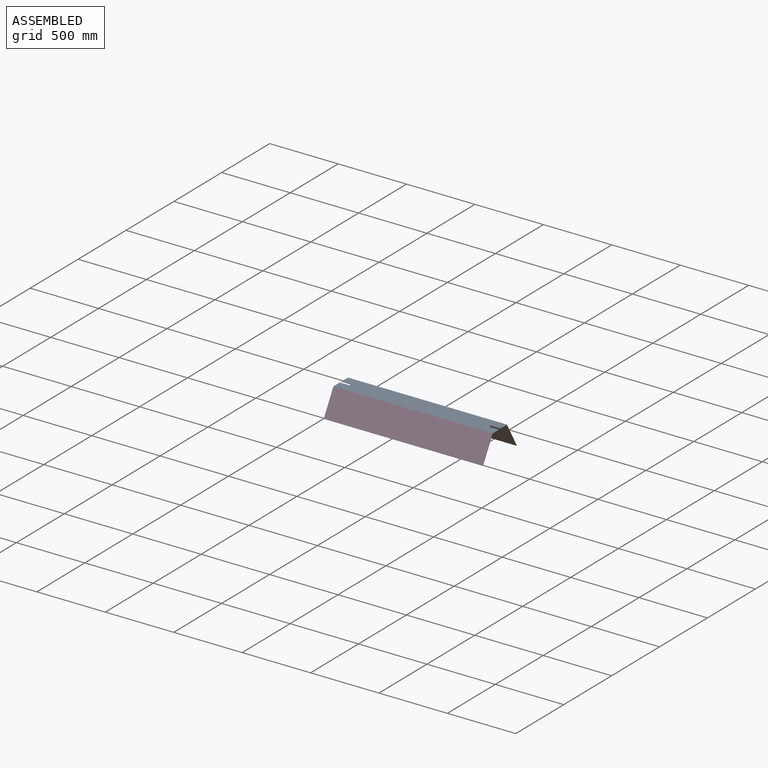
[diagram: assembled view]
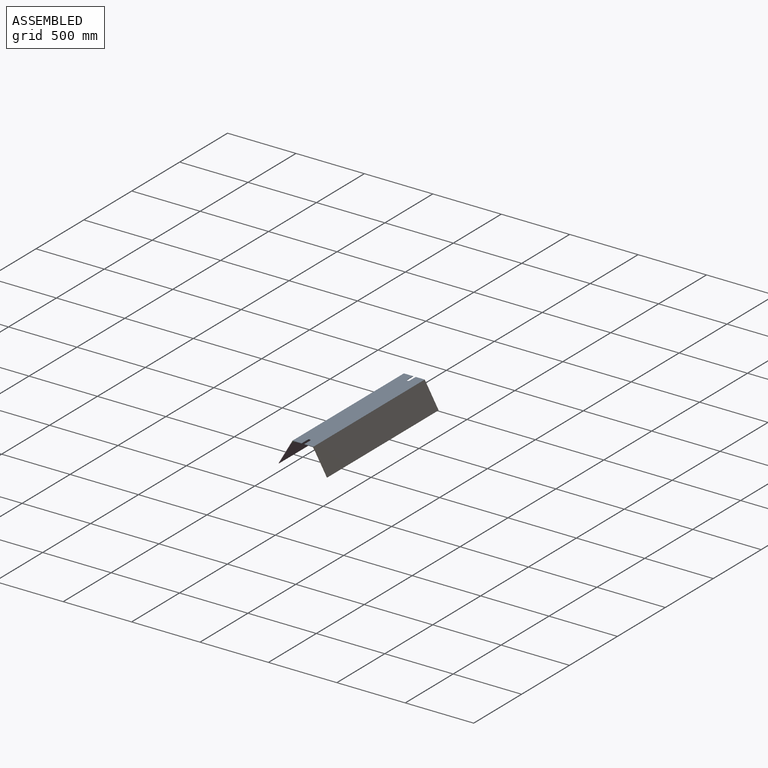
[diagram: assembled view, second angle]
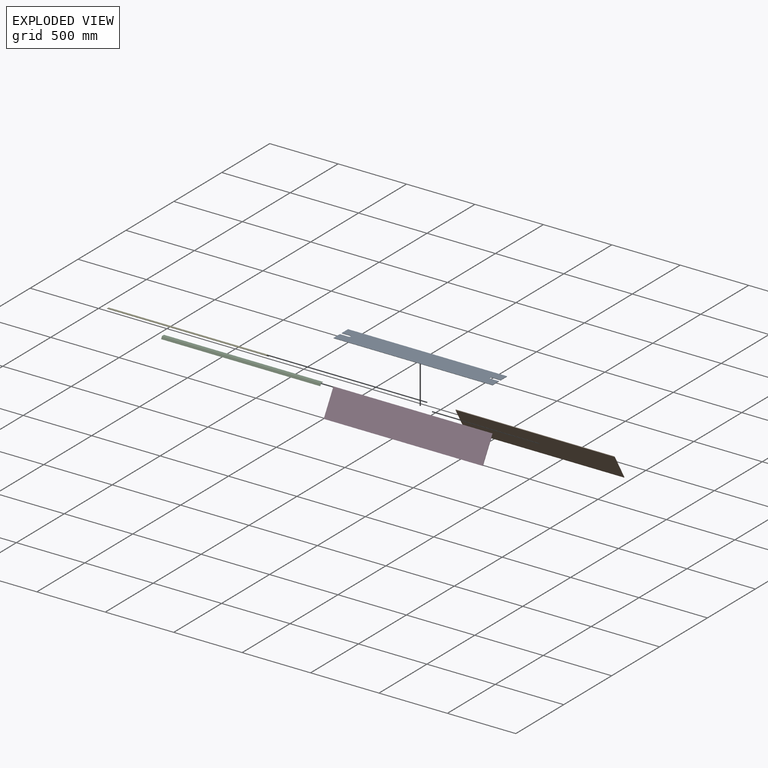
[diagram: exploded view]
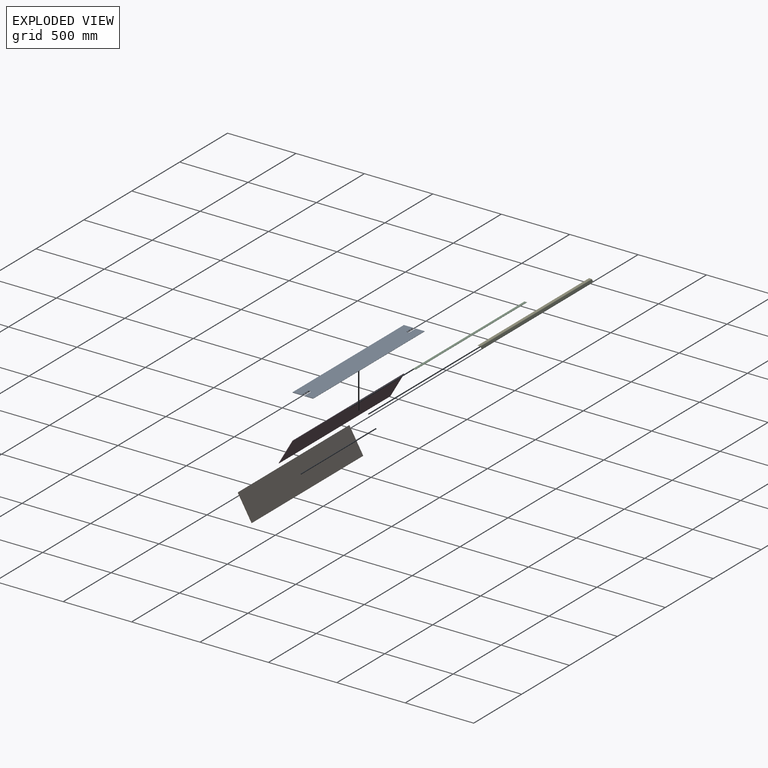
[diagram: exploded view, second angle]
ASSEMBLY  parts=5 mates=5
PART A: 14 faces, bbox 1162.1x152.4x3 mm
  f0: plane 67.23x3mm, normal (-1,0,0), area 198.9mm2, adj f1,f2,f4,f12
  f1: plane 1162.05x152.4mm, normal (0,0,1), area 174392mm2, adj f0,f3,f4,f5,f6,f7,f8,f9
  f2: plane 1162.05x148.94mm, normal (0,0,-1), area 170370.3mm2, adj f0,f3,f4,f5,f6,f7,f8,f9
  f3: plane 67.23x3mm, normal (1,0,0), area 198.9mm2, adj f1,f2,f4,f10
  f4: plane 1162.05x3mm, normal (0,-0.87,-0.5), area 4021.7mm2, adj f0,f1,f2,f3
  f5: plane 1162.05x3mm, normal (0,0.87,-0.5), area 4021.7mm2, adj f1,f2,f6,f7
  f6: plane 66.12x3mm, normal (-1,0,0), area 195.6mm2, adj f1,f2,f5,f11
  f7: plane 66.12x3mm, normal (1,0,0), area 195.6mm2, adj f1,f2,f5,f8
  f8: plane 63.5x3mm, normal (0,-1,0), area 190.3mm2, adj f1,f2,f7,f9
  f9: cylinder r=9.53mm len=19.05mm, axis (0,0,1), area 89.7mm2, adj f1,f2,f8,f10
  f10: plane 63.5x3mm, normal (0,1,0), area 190.3mm2, adj f1,f2,f3,f9
  f11: plane 63.5x3mm, normal (0,-1,0), area 190.3mm2, adj f1,f2,f6,f13
  f12: plane 63.5x3mm, normal (0,1,0), area 190.3mm2, adj f0,f1,f2,f13
  f13: cylinder r=9.53mm len=19.05mm, axis (0,0,1), area 89.7mm2, adj f1,f2,f11,f12
PART B: 6 faces, bbox 1162.1x103.3x177.5 mm
  f0: plane 1162.05x174.48mm, normal (0,-0.87,-0.5), area 234117.7mm2, adj f1,f3,f4,f5
  f1: plane 1162.05x2.6mm, normal (0,0.5,-0.87), area 3482.9mm2, adj f0,f2,f4,f5
  f2: plane 1162.05x175.98mm, normal (0,0.87,0.5), area 236128.6mm2, adj f1,f3,f4,f5
  f3: plane 1162.05x3mm, normal (0,-0.87,0.5), area 4021.7mm2, adj f0,f2,f4,f5
  f4: plane 177.48x103.33mm, normal (-1,0,0), area 606.4mm2, adj f0,f1,f2,f3
  f5: plane 177.48x103.33mm, normal (1,0,0), area 606.4mm2, adj f0,f1,f2,f3
PART C: 10 faces, bbox 1162.1x30x18.1 mm
  f0: cylinder r=4.76mm len=1162.05mm, axis (1,0,0), area 5795.5mm2, adj f1,f7,f8,f9
  f1: plane 1162.05x16.3mm, normal (0,0,-1), area 18941.8mm2, adj f0,f2,f8,f9
  f2: plane 1162.05x1.59mm, normal (0,1,0), area 1844.8mm2, adj f1,f3,f8,f9
  f3: plane 1162.05x16.3mm, normal (0,0,1), area 18941.8mm2, adj f2,f4,f8,f9
  f4: cylinder r=6.35mm len=1162.05mm, axis (1,0,0), area 7727.3mm2, adj f3,f5,f8,f9
  f5: plane 1162.05x14.12mm, normal (0,-0.87,0.5), area 18941.8mm2, adj f4,f6,f8,f9
  f6: plane 1162.05x1.38mm, normal (0,-0.5,-0.87), area 1844.8mm2, adj f5,f7,f8,f9
  f7: plane 1162.05x14.12mm, normal (0,0.87,-0.5), area 18941.8mm2, adj f0,f6,f8,f9
  f8: plane 29.95x18.09mm, normal (-1,0,0), area 61mm2, adj f0,f1,f2,f3,f4,f5,f6,f7
  f9: plane 29.95x18.09mm, normal (1,0,0), area 61mm2, adj f0,f1,f2,f3,f4,f5,f6,f7
PART D: 6 faces, bbox 1162.1x103.3x177.5 mm
  f0: plane 1162.05x2.6mm, normal (0,-0.5,-0.87), area 3482.9mm2, adj f1,f3,f4,f5
  f1: plane 1162.05x174.48mm, normal (0,0.87,-0.5), area 234117.7mm2, adj f0,f2,f4,f5
  f2: plane 1162.05x3mm, normal (0,0.87,0.5), area 4021.7mm2, adj f1,f3,f4,f5
  f3: plane 1162.05x175.98mm, normal (0,-0.87,0.5), area 236128.6mm2, adj f0,f2,f4,f5
  f4: plane 177.48x103.33mm, normal (-1,0,0), area 606.4mm2, adj f0,f1,f2,f3
  f5: plane 177.48x103.33mm, normal (1,0,0), area 606.4mm2, adj f0,f1,f2,f3
PART E: 10 faces, bbox 1162.1x30x18.1 mm
  f0: plane 1162.05x14.12mm, normal (0,0.87,0.5), area 18941.8mm2, adj f1,f7,f8,f9
  f1: cylinder r=6.35mm len=1162.05mm, axis (1,0,0), area 7727.3mm2, adj f0,f2,f8,f9
  f2: plane 1162.05x16.3mm, normal (0,0,1), area 18941.8mm2, adj f1,f3,f8,f9
  f3: plane 1162.05x1.59mm, normal (0,-1,0), area 1844.8mm2, adj f2,f4,f8,f9
  f4: plane 1162.05x16.29mm, normal (0,0,-1), area 18933.3mm2, adj f3,f5,f8,f9
  f5: cylinder r=4.78mm len=1162.05mm, axis (1,0,0), area 5810.9mm2, adj f4,f6,f8,f9
  f6: plane 1162.05x14.11mm, normal (0,-0.87,-0.5), area 18933.3mm2, adj f5,f7,f8,f9
  f7: plane 1162.05x1.38mm, normal (0,0.5,-0.87), area 1844.8mm2, adj f0,f6,f8,f9
  f8: plane 29.95x18.09mm, normal (-1,0,0), area 61mm2, adj f0,f1,f2,f3,f4,f5,f6,f7
  f9: plane 29.95x18.09mm, normal (1,0,0), area 61mm2, adj f0,f1,f2,f3,f4,f5,f6,f7
PLACE A t=(-311.75,-365.53,222.54)mm
PLACE B t=(-311.75,-190.88,48.06)mm
PLACE C t=(-311.75,-449.15,204.47)mm
PLACE D t=(-311.75,-541.29,48.06)mm
PLACE E t=(-312.79,-283.01,204.46)mm
MATE parallel C.f9 <-> A.f3  axis (1,0,0) through (-311.75,-420.58,222.55)mm
MATE parallel E.f9 <-> A.f7  axis (1,0,0) through (-312.79,-295.28,222.55)mm
MATE parallel C.f9 <-> D.f5  axis (1,0,0) through (-311.75,-450.53,205.26)mm
MATE parallel D.f5 <-> A.f3  axis (1,0,0) through (-311.75,-440.55,222.54)mm
MATE parallel B.f5 <-> A.f7  axis (1,0,0) through (-311.75,-291.62,222.54)mm
